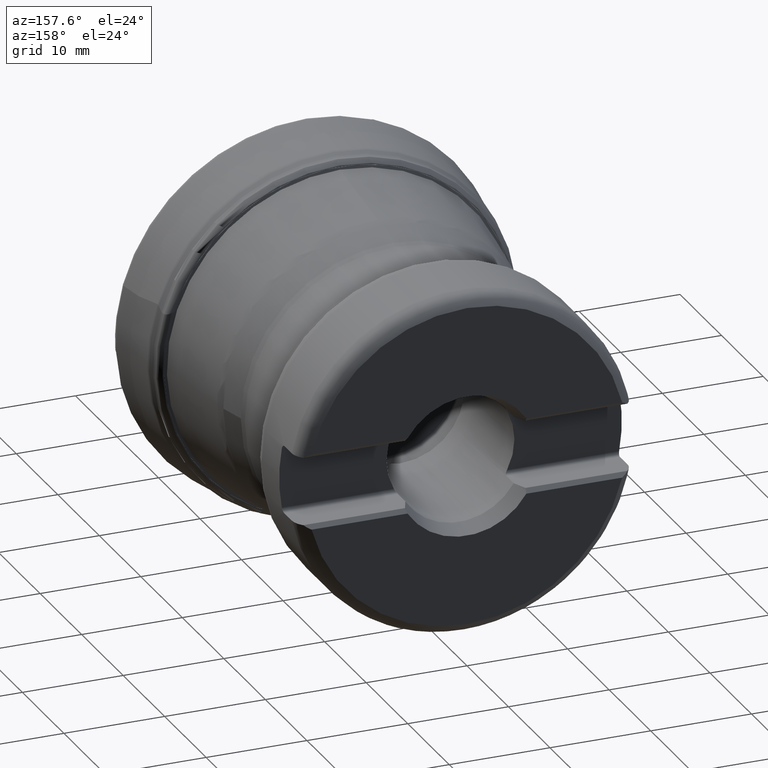
[diagram: clean part render]
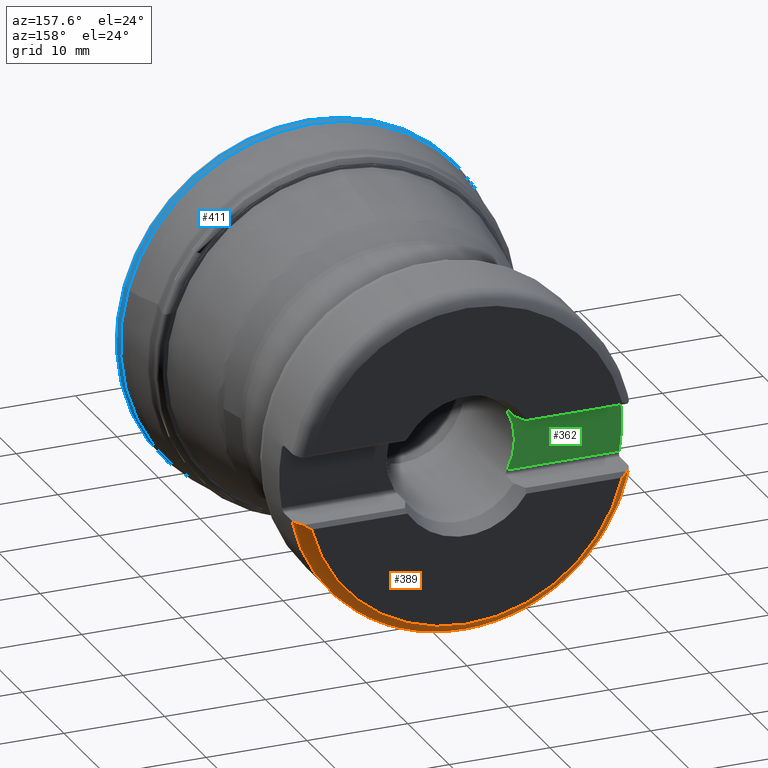
[diagram: same view with three faces highlighted in distinct colors, each labeled with its STEP entity id]
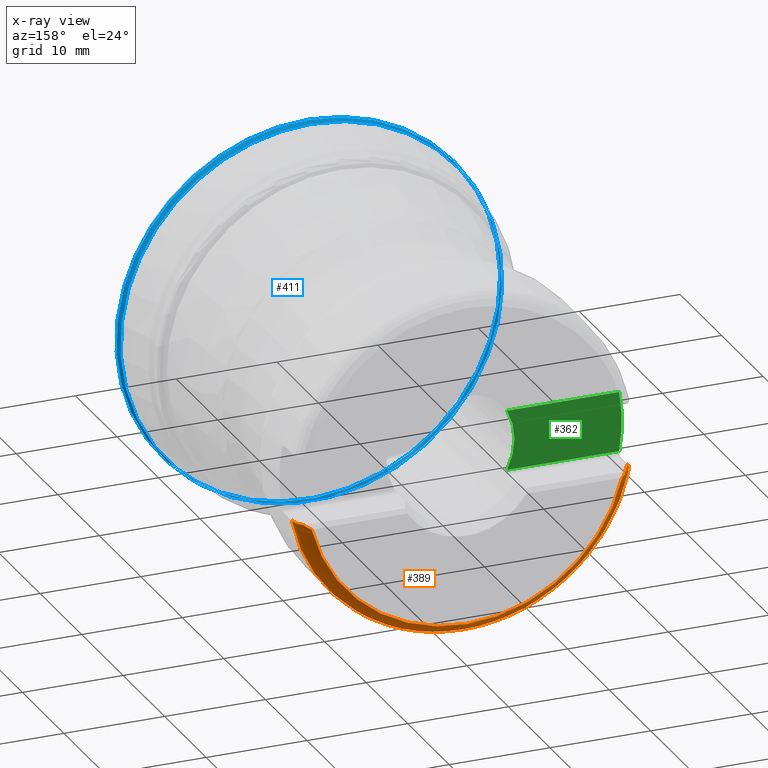
[diagram: x-ray of the same camera — body ghosted, the three highlighted faces saturated]
A machine part, auxiliary view with three faces highlighted in distinct colors.
The next image is the same camera in x-ray (body ghosted, the three faces saturated) — at least one of them is partly hidden behind the body in this view.
Their STEP definitions:

[orange] entity #389 — the highlighted toroidal blend (fillet) surface has major radius 15 mm and minor (blend) radius 2 mm.
#189=TOROIDAL_SURFACE('',#1319,15.,2.);
#225=FACE_OUTER_BOUND('',#622,.T.);
#242=B_SPLINE_CURVE_WITH_KNOTS('',3,(#1884,#1885,#1886,#1887,#1888,#1889,
#1890,#1891,#1892,#1893),.UNSPECIFIED.,.F.,.F.,(4,3,3,4),(0.,0.426994848820018,
0.853773103595003,1.),.UNSPECIFIED.);
#245=B_SPLINE_CURVE_WITH_KNOTS('',3,(#1912,#1913,#1914,#1915,#1916,#1917,
#1918,#1919,#1920,#1921),.UNSPECIFIED.,.F.,.F.,(4,3,3,4),(0.,0.308559161606868,
0.744897130411197,1.),.UNSPECIFIED.);
#252=B_SPLINE_CURVE_WITH_KNOTS('',3,(#2057,#2058,#2059,#2060,#2061,#2062,
#2063),.UNSPECIFIED.,.F.,.F.,(4,3,4),(0.,0.299268376930892,1.),
 .UNSPECIFIED.);
#253=B_SPLINE_CURVE_WITH_KNOTS('',3,(#2064,#2065,#2066,#2067),
 .UNSPECIFIED.,.F.,.F.,(4,4),(0.,1.),.UNSPECIFIED.);
#389=ADVANCED_FACE('',(#225),#189,.T.);
#622=EDGE_LOOP('',(#841,#842,#843,#844,#845,#846));
#841=ORIENTED_EDGE('',*,*,#1130,.F.);
#842=ORIENTED_EDGE('',*,*,#1131,.T.);
#843=ORIENTED_EDGE('',*,*,#1093,.F.);
#844=ORIENTED_EDGE('',*,*,#1068,.F.);
#845=ORIENTED_EDGE('',*,*,#1099,.F.);
#846=ORIENTED_EDGE('',*,*,#1132,.T.);
#967=VERTEX_POINT('',#1734);
#968=VERTEX_POINT('',#1736);
#986=VERTEX_POINT('',#1894);
#991=VERTEX_POINT('',#1911);
#1014=VERTEX_POINT('',#2055);
#1015=VERTEX_POINT('',#2056);
#1068=EDGE_CURVE('',#967,#968,#1184,.T.);
#1093=EDGE_CURVE('',#968,#986,#242,.T.);
#1099=EDGE_CURVE('',#991,#967,#245,.T.);
#1130=EDGE_CURVE('',#1014,#1015,#1209,.T.);
#1131=EDGE_CURVE('',#1014,#986,#252,.T.);
#1132=EDGE_CURVE('',#991,#1015,#253,.T.);
#1184=CIRCLE('',#1259,17.);
#1209=CIRCLE('',#1318,15.8717797887082);
#1259=AXIS2_PLACEMENT_3D('',#1735,#1392,#1393);
#1318=AXIS2_PLACEMENT_3D('',#2054,#1527,#1528);
#1319=AXIS2_PLACEMENT_3D('',#2068,#1529,#1530);
#1392=DIRECTION('',(1.16234042869424E-17,-1.,0.));
#1393=DIRECTION('',(1.,0.,0.));
#1527=DIRECTION('',(-1.16234042869424E-17,1.,0.));
#1528=DIRECTION('',(1.,0.,0.));
#1529=DIRECTION('',(1.16234042869424E-17,-1.,0.));
#1530=DIRECTION('',(1.,0.,0.));
#1734=CARTESIAN_POINT('',(-16.6616138173948,38.205,-3.375));
#1735=CARTESIAN_POINT('',(-1.75311003082637E-15,38.205,0.));
#1736=CARTESIAN_POINT('',(16.6616138173948,38.205,-3.375));
#1884=CARTESIAN_POINT('',(16.6616138173948,38.205,-3.375));
#1885=CARTESIAN_POINT('',(16.6616138173948,38.4254296935192,-3.375));
#1886=CARTESIAN_POINT('',(16.6233373110928,38.6488971692904,-3.375));
#1887=CARTESIAN_POINT('',(16.5501785401111,38.8568323611494,-3.375));
#1888=CARTESIAN_POINT('',(16.4770404000368,39.064708914903,-3.375));
#1889=CARTESIAN_POINT('',(16.367089199065,39.2627488790964,-3.375));
#1890=CARTESIAN_POINT('',(16.2297709971047,39.435101890513,-3.375));
#1891=CARTESIAN_POINT('',(16.1824334709583,39.4945169212072,-3.375));
#1892=CARTESIAN_POINT('',(16.1316299221984,39.5513250719608,-3.375));
#1893=CARTESIAN_POINT('',(16.0778713009919,39.605,-3.375));
#1894=CARTESIAN_POINT('',(16.0778713009919,39.605,-3.375));
#1911=CARTESIAN_POINT('',(-16.0778713009919,39.605,-3.375));
#1912=CARTESIAN_POINT('',(-16.0778713009919,39.605,-3.375));
#1913=CARTESIAN_POINT('',(-16.1906032964996,39.4924435093238,-3.375));
#1914=CARTESIAN_POINT('',(-16.290612583288,39.3655345166534,-3.375));
#1915=CARTESIAN_POINT('',(-16.3734684618496,39.2294743469038,-3.375));
#1916=CARTESIAN_POINT('',(-16.4905073609351,39.03728119473,-3.375));
#1917=CARTESIAN_POINT('',(-16.5756354981541,38.8218447359288,-3.375));
#1918=CARTESIAN_POINT('',(-16.6211161288097,38.6014636480904,-3.375));
#1919=CARTESIAN_POINT('',(-16.6479653414783,38.4713630182134,-3.375));
#1920=CARTESIAN_POINT('',(-16.6616138173948,38.33784221511,-3.375));
#1921=CARTESIAN_POINT('',(-16.6616138173948,38.205,-3.375));
#2054=CARTESIAN_POINT('',(-1.77403215854286E-15,40.005,0.));
#2055=CARTESIAN_POINT('',(15.416315015648,40.005,-3.775));
#2056=CARTESIAN_POINT('',(-15.4163150156334,40.005,-3.775));
#2057=CARTESIAN_POINT('',(15.416315015648,40.005,-3.775));
#2058=CARTESIAN_POINT('',(15.491132895786,39.9734394436265,-3.74343944362645));
#2059=CARTESIAN_POINT('',(15.5635469422714,39.9388754582815,-3.7088754582815));
#2060=CARTESIAN_POINT('',(15.6331865568956,39.9018607537673,-3.67186075376729));
#2061=CARTESIAN_POINT('',(15.7961358838516,39.8152502631634,-3.5852502631634));
#2062=CARTESIAN_POINT('',(15.9452514984839,39.7144696882783,-3.48446968827823));
#2063=CARTESIAN_POINT('',(16.0778713009919,39.605,-3.375));
#2064=CARTESIAN_POINT('',(-16.0778713009919,39.605,-3.375));
#2065=CARTESIAN_POINT('',(-15.889111079588,39.760810235015,-3.53081023501495));
#2066=CARTESIAN_POINT('',(-15.6654895824939,39.8998902595257,-3.6698902595257));
#2067=CARTESIAN_POINT('',(-15.4163150156334,40.005,-3.775));
#2068=CARTESIAN_POINT('',(-1.75311003082637E-15,38.205,0.));

[blue] entity #411 — the highlighted face is a SurfaceOfRevolution surface.
#117=SURFACE_OF_REVOLUTION('',#315,#156);
#156=AXIS1_PLACEMENT('',#2192,#1597);
#315=LINE('',#2191,#344);
#344=VECTOR('',#1596,0.730709843822397);
#411=ADVANCED_FACE('',(#517,#518),#117,.F.);
#517=FACE_BOUND('',#659,.T.);
#518=FACE_BOUND('',#660,.T.);
#659=EDGE_LOOP('',(#901));
#660=EDGE_LOOP('',(#902));
#901=ORIENTED_EDGE('',*,*,#1152,.T.);
#902=ORIENTED_EDGE('',*,*,#1151,.F.);
#1030=VERTEX_POINT('',#2186);
#1031=VERTEX_POINT('',#2190);
#1151=EDGE_CURVE('',#1030,#1030,#1223,.T.);
#1152=EDGE_CURVE('',#1031,#1031,#1224,.T.);
#1223=CIRCLE('',#1340,18.9482576876223);
#1224=CIRCLE('',#1341,19.0500000024449);
#1340=AXIS2_PLACEMENT_3D('',#2185,#1590,#1591);
#1341=AXIS2_PLACEMENT_3D('',#2189,#1594,#1595);
#1590=DIRECTION('',(0.,1.,0.));
#1591=DIRECTION('',(0.,0.,1.));
#1594=DIRECTION('',(0.,1.,0.));
#1595=DIRECTION('',(0.,0.,1.));
#1596=DIRECTION('',(0.141768661537424,-0.989829113963586,0.0118309659770498));
#1597=DIRECTION('',(0.,1.,0.));
#2185=CARTESIAN_POINT('',(0.,2.52978302504087,0.));
#2186=CARTESIAN_POINT('',(0.,2.52978302504087,18.9482576876223));
#2189=CARTESIAN_POINT('',(0.,1.80650514776568,0.));
#2190=CARTESIAN_POINT('',(0.,1.80650514776568,19.0500000024449));
#2191=CARTESIAN_POINT('',(18.1550458322935,2.52978302504087,5.42501430632741));
#2192=CARTESIAN_POINT('',(0.,0.,0.));

[green] entity #362 — the highlighted planar face has unit normal (0, 1, 0).
#195=PLANE('',#1272);
#212=FACE_OUTER_BOUND('',#581,.T.);
#292=LINE('',#1790,#321);
#293=LINE('',#1794,#322);
#321=VECTOR('',#1417,1.);
#322=VECTOR('',#1420,1.);
#362=ADVANCED_FACE('',(#212),#195,.T.);
#581=EDGE_LOOP('',(#736,#737,#738,#739));
#736=ORIENTED_EDGE('',*,*,#1065,.T.);
#737=ORIENTED_EDGE('',*,*,#1079,.T.);
#738=ORIENTED_EDGE('',*,*,#1080,.T.);
#739=ORIENTED_EDGE('',*,*,#1081,.T.);
#964=VERTEX_POINT('',#1713);
#965=VERTEX_POINT('',#1715);
#978=VERTEX_POINT('',#1791);
#979=VERTEX_POINT('',#1793);
#1065=EDGE_CURVE('',#965,#964,#1183,.T.);
#1079=EDGE_CURVE('',#964,#978,#292,.T.);
#1080=EDGE_CURVE('',#978,#979,#1192,.T.);
#1081=EDGE_CURVE('',#979,#965,#293,.T.);
#1183=CIRCLE('',#1258,17.);
#1192=CIRCLE('',#1271,6.35);
#1258=AXIS2_PLACEMENT_3D('',#1714,#1389,#1390);
#1271=AXIS2_PLACEMENT_3D('',#1792,#1418,#1419);
#1272=AXIS2_PLACEMENT_3D('',#1795,#1421,#1422);
#1389=DIRECTION('',(0.,1.,0.));
#1390=DIRECTION('',(0.,0.,1.));
#1417=DIRECTION('',(1.,0.,0.));
#1418=DIRECTION('',(0.,-1.,0.));
#1419=DIRECTION('',(0.,0.,1.));
#1420=DIRECTION('',(-1.,0.,0.));
#1421=DIRECTION('',(0.,1.,0.));
#1422=DIRECTION('',(0.,0.,1.));
#1713=CARTESIAN_POINT('',(-16.737663367388,36.0426,2.975));
#1714=CARTESIAN_POINT('',(-1.72797558139628E-15,36.0426,0.));
#1715=CARTESIAN_POINT('',(-16.737663367388,36.0426,-2.975));
#1790=CARTESIAN_POINT('',(-24.5,36.0426,2.975));
#1791=CARTESIAN_POINT('',(-5.60997994648822,36.0426,2.975));
#1792=CARTESIAN_POINT('',(0.,36.0426,0.));
#1793=CARTESIAN_POINT('',(-5.60997994648822,36.0426,-2.975));
#1794=CARTESIAN_POINT('',(-24.5,36.0426,-2.975));
#1795=CARTESIAN_POINT('',(-24.5,36.0426,-3.375));